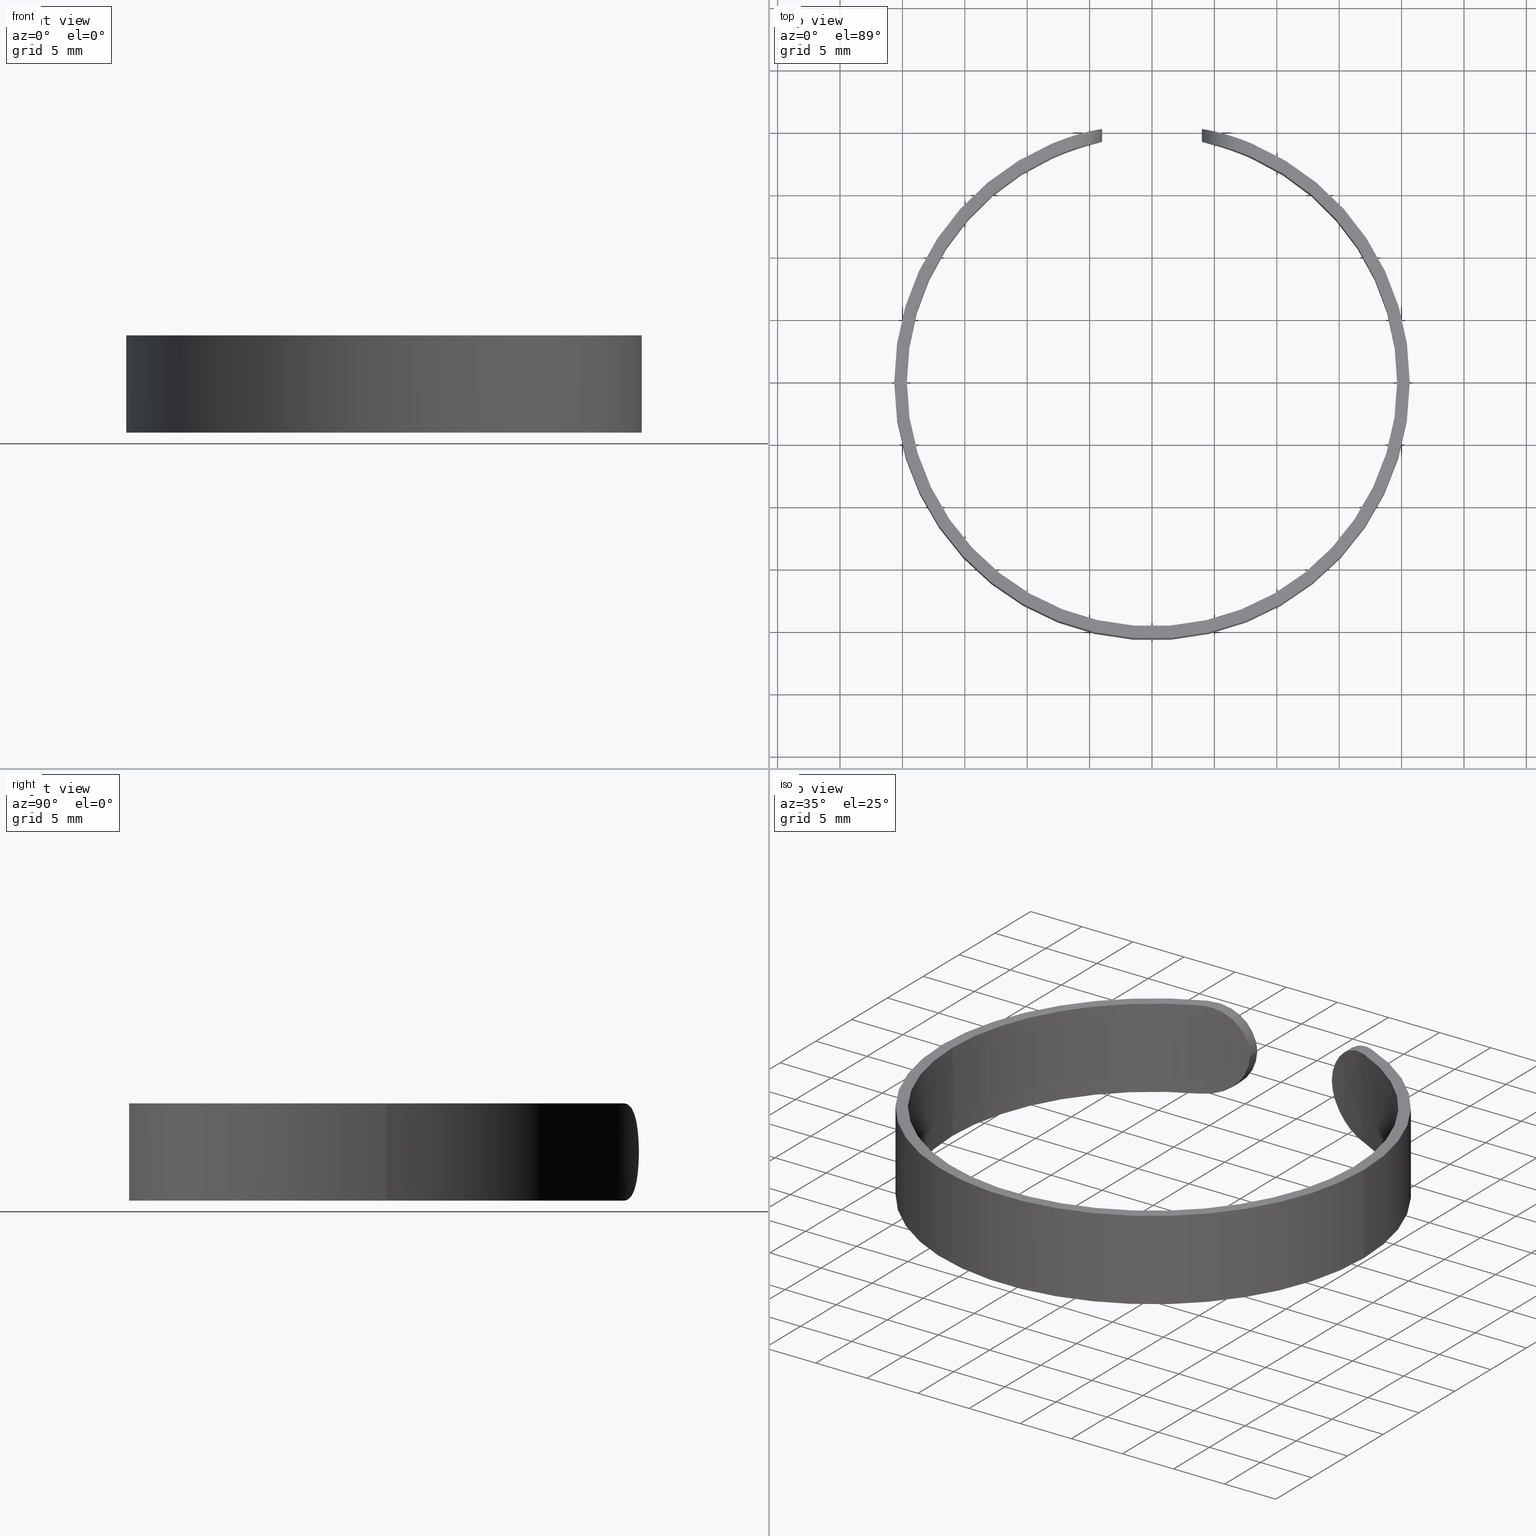
[diagram: canonical four-view strip — front | top / right | iso, engineering-drawing reading convention]
A machine part, canonical four-view strip (front | top / right | iso — engineering-drawing reading convention). The complete STEP part file that produces these views, byte-faithful:
ISO-10303-21;
HEADER;
FILE_DESCRIPTION (( 'STEP AP203' ),
    '1' );
FILE_NAME ('515001.STEP',
    '2019-09-26T07:24:07',
    ( '' ),
    ( '' ),
    'SwSTEP 2.0',
    'SolidWorks 2016',
    '' );
FILE_SCHEMA (( 'CONFIG_CONTROL_DESIGN' ));
ENDSEC;

DATA;
#1 = PERSON_AND_ORGANIZATION_ROLE ( 'creator' ) ;
#2 = CIRCLE ( 'NONE', #518, 19.65000000000000200 ) ;
#3 = CARTESIAN_POINT ( 'NONE',  ( 6.307868449288566400, 19.66454576154485100, 7.433185883465450100 ) ) ;
#4 = ORIENTED_EDGE ( 'NONE', *, *, #328, .F. ) ;
#5 = DESIGN_CONTEXT ( 'detailed design', #452, 'design' ) ;
#6 = ADVANCED_FACE ( 'NONE', ( #531 ), #271, .T. ) ;
#7 = AXIS2_PLACEMENT_3D ( 'NONE', #92, #247, #401 ) ;
#8 = CARTESIAN_POINT ( 'NONE',  ( 5.450281195804393500, 18.88003390752093200, 6.893003812361151000 ) ) ;
#9 = CARTESIAN_POINT ( 'NONE',  ( 5.445877405462773000, 18.88129034039584700, 0.9107619216082537500 ) ) ;
#10 = CARTESIAN_POINT ( 'NONE',  ( 7.755833108593554600, 18.05660586022417700, 1.304430738771622800E-016 ) ) ;
#11 = PERSON_AND_ORGANIZATION ( #171, #152 ) ;
#12 = ORIENTED_EDGE ( 'NONE', *, *, #263, .F. ) ;
#13 = CARTESIAN_POINT ( 'NONE',  ( 19.65000000000000200, 2.406430960324549000E-015, 0.0000000000000000000 ) ) ;
#14 = CC_DESIGN_PERSON_AND_ORGANIZATION_ASSIGNMENT ( #11, #359, ( #183 ) ) ;
#15 = CARTESIAN_POINT ( 'NONE',  ( -19.65000000000000200, 0.0000000000000000000, 0.0000000000000000000 ) ) ;
#16 = SECURITY_CLASSIFICATION ( '', '', #149 ) ;
#17 = PERSON_AND_ORGANIZATION ( #171, #152 ) ;
#18 = CIRCLE ( 'NONE', #266, 19.65000000000000200 ) ;
#19 = DIRECTION ( 'NONE',  ( -0.0000000000000000000, -0.0000000000000000000, -1.000000000000000000 ) ) ;
#20 = VECTOR ( 'NONE', #248, 1000.000000000000000 ) ;
#21 = CARTESIAN_POINT ( 'NONE',  ( 4.895375029125314200, 20.06195776127647100, 1.464316113444598800 ) ) ;
#22 = CARTESIAN_POINT ( 'NONE',  ( -8.000000000000000000, 20.25888693882269100, 4.000000000000000000 ) ) ;
#23 = B_SPLINE_CURVE_WITH_KNOTS ( 'NONE', 3,
 ( #594, #142, #251, #296, #550, #395, #588, #298, #43, #403, #597, #96, #639, #502, #204, #544, #633, #635 ),
 .UNSPECIFIED., .F., .F.,
 ( 4, 2, 2, 2, 2, 2, 2, 2, 4 ),
 ( 0.0000000000000000000, 0.0007915782711390858200, 0.001583156542278171600, 0.002374734813417257500, 0.003166313084556343300, 0.003957891355695429500, 0.004749469626834514900, 0.005541047897973600300, 0.006332626169112686600 ),
 .UNSPECIFIED. ) ;
#24 = LOCAL_TIME ( 15, 24, 7.000000000000000000, #293 ) ;
#25 = PLANE ( 'NONE',  #99 ) ;
#26 = CARTESIAN_POINT ( 'NONE',  ( 7.999999999999998200, 19.03739740615822700, 0.0000000000000000000 ) ) ;
#27 = AXIS2_PLACEMENT_3D ( 'NONE', #356, #584, #242 ) ;
#28 = CARTESIAN_POINT ( 'NONE',  ( 4.001250195373557100, 20.25864005490059900, 3.899999999999993200 ) ) ;
#29 = CALENDAR_DATE ( 2019, 26, 9 ) ;
#30 = CARTESIAN_POINT ( 'NONE',  ( -5.440013080308325800, 19.92150801506721800, 0.9156393886543285900 ) ) ;
#31 = ORIENTED_EDGE ( 'NONE', *, *, #433, .T. ) ;
#32 = EDGE_LOOP ( 'NONE', ( #212, #81, #79, #265, #593 ) ) ;
#33 = PRODUCT_DEFINITION_SHAPE ( 'NONE', 'NONE',  #526 ) ;
#34 = CARTESIAN_POINT ( 'NONE',  ( -4.591656496433357000, 20.13364190875028800, 5.909877613514676200 ) ) ;
#35 = AXIS2_PLACEMENT_3D ( 'NONE', #521, #573, #280 ) ;
#36 = DIRECTION ( 'NONE',  ( -0.0000000000000000000, 1.000000000000000000, 0.0000000000000000000 ) ) ;
#37 = PERSON_AND_ORGANIZATION ( #171, #152 ) ;
#38 = ORIENTED_EDGE ( 'NONE', *, *, #343, .T. ) ;
#39 = EDGE_CURVE ( 'NONE', #130, #272, #287, .T. ) ;
#40 = CARTESIAN_POINT ( 'NONE',  ( -4.589655885951295000, 19.10712834291797800, 5.906866773427263500 ) ) ;
#41 = CARTESIAN_POINT ( 'NONE',  ( 7.999999999999998200, 17.94777144940285000, 7.799999999999999800 ) ) ;
#42 = MANIFOLD_SOLID_BREP ( 'Բ��1', #73 ) ;
#43 = CARTESIAN_POINT ( 'NONE',  ( -5.450281195804408600, 18.88003390752092500, 0.9069961876388404900 ) ) ;
#44 = CALENDAR_DATE ( 2019, 26, 9 ) ;
#45 = CARTESIAN_POINT ( 'NONE',  ( -4.001250195373559700, 20.25864005490060300, 3.899999999999970200 ) ) ;
#46 = LINE ( 'NONE', #115, #200 ) ;
#47 = EDGE_LOOP ( 'NONE', ( #353, #181, #418, #330 ) ) ;
#48 = VERTEX_POINT ( 'NONE', #632 ) ;
#49 = DIRECTION ( 'NONE',  ( 1.000000000000000000, 0.0000000000000000000, 0.0000000000000000000 ) ) ;
#50 = PRODUCT_RELATED_PRODUCT_CATEGORY ( 'detail', '', ( #566 ) ) ;
#51 = CARTESIAN_POINT ( 'NONE',  ( -7.025993754578018400, 18.35282960933736300, 7.687470841140388700 ) ) ;
#52 = SECURITY_CLASSIFICATION_LEVEL ( 'unclassified' ) ;
#53 = ADVANCED_FACE ( 'NONE', ( #530 ), #389, .T. ) ;
#54 = CARTESIAN_POINT ( 'NONE',  ( 6.776633648679635700, 19.50796762282028100, 7.616637737483452000 ) ) ;
#55 = EDGE_CURVE ( 'NONE', #48, #611, #136, .T. ) ;
#56 = CARTESIAN_POINT ( 'NONE',  ( 5.645090313509517600, 19.86472171443856300, 7.043598642528150900 ) ) ;
#57 = FACE_OUTER_BOUND ( 'NONE', #89, .T. ) ;
#58 = CARTESIAN_POINT ( 'NONE',  ( 5.651630731262319100, 18.82109915163533400, 0.7516877539211309600 ) ) ;
#59 = ORIENTED_EDGE ( 'NONE', *, *, #87, .T. ) ;
#60 = EDGE_CURVE ( 'NONE', #189, #138, #383, .T. ) ;
#61 = DIRECTION ( 'NONE',  ( 0.0000000000000000000, -1.000000000000000000, 0.0000000000000000000 ) ) ;
#62 = DIRECTION ( 'NONE',  ( -0.0000000000000000000, -0.0000000000000000000, -1.000000000000000000 ) ) ;
#63 = DIRECTION ( 'NONE',  ( -4.250444316547424500E-015, -1.000000000000000000, 0.0000000000000000000 ) ) ;
#64 = COORDINATED_UNIVERSAL_TIME_OFFSET ( 8, 0, .AHEAD. ) ;
#65 = VECTOR ( 'NONE', #75, 1000.000000000000000 ) ;
#66 = ORIENTED_EDGE ( 'NONE', *, *, #333, .T. ) ;
#67 = DIRECTION ( 'NONE',  ( -0.0000000000000000000, -0.0000000000000000000, -1.000000000000000000 ) ) ;
#68 = DIRECTION ( 'NONE',  ( 0.0000000000000000000, 0.0000000000000000000, 1.000000000000000000 ) ) ;
#69 = DIRECTION ( 'NONE',  ( 0.0000000000000000000, 0.0000000000000000000, 1.000000000000000000 ) ) ;
#70 = AXIS2_PLACEMENT_3D ( 'NONE', #398, #93, #49 ) ;
#71 = LINE ( 'NONE', #423, #627 ) ;
#72 = CARTESIAN_POINT ( 'NONE',  ( 4.243328438209134700, 20.20962064675951500, 2.601297775789987100 ) ) ;
#73 = CLOSED_SHELL ( 'NONE', ( #53, #307, #587, #193, #420, #641, #394, #533, #196, #537, #6, #402 ) ) ;
#74 = CARTESIAN_POINT ( 'NONE',  ( -20.64999999999999900, 0.0000000000000000000, 7.799999999999999800 ) ) ;
#75 = DIRECTION ( 'NONE',  ( -0.0000000000000000000, -0.0000000000000000000, -1.000000000000000000 ) ) ;
#76 = CARTESIAN_POINT ( 'NONE',  ( 0.0000000000000000000, 0.0000000000000000000, 0.0000000000000000000 ) ) ;
#77 = CALENDAR_DATE ( 2019, 26, 9 ) ;
#78 = CIRCLE ( 'NONE', #575, 20.64999999999999900 ) ;
#79 = ORIENTED_EDGE ( 'NONE', *, *, #91, .T. ) ;
#80 = DIRECTION ( 'NONE',  ( 4.250444316547424500E-015, 1.000000000000000000, -0.0000000000000000000 ) ) ;
#81 = ORIENTED_EDGE ( 'NONE', *, *, #640, .F. ) ;
#82 = CARTESIAN_POINT ( 'NONE',  ( -4.895375029125304400, 20.06195776127647100, 6.335683886555385100 ) ) ;
#83 = AXIS2_PLACEMENT_3D ( 'NONE', #350, #249, #347 ) ;
#84 = CARTESIAN_POINT ( 'NONE',  ( -4.041219654612105700, 20.25079472239115200, 4.431405115075309100 ) ) ;
#85 = CALENDAR_DATE ( 2019, 26, 9 ) ;
#86 = CARTESIAN_POINT ( 'NONE',  ( -4.001250195373559700, 20.25864005490060300, 3.899999999999970200 ) ) ;
#87 = EDGE_CURVE ( 'NONE', #272, #558, #429, .T. ) ;
#88 = CYLINDRICAL_SURFACE ( 'NONE', #35, 19.65000000000000200 ) ;
#89 = EDGE_LOOP ( 'NONE', ( #410, #66, #471, #517, #425, #629, #123, #565 ) ) ;
#90 = CARTESIAN_POINT ( 'NONE',  ( -19.65000000000000200, 0.0000000000000000000, 7.799999999999999800 ) ) ;
#91 = EDGE_CURVE ( 'NONE', #571, #48, #164, .T. ) ;
#92 = CARTESIAN_POINT ( 'NONE',  ( 0.0000000000000000000, 0.0000000000000000000, 7.799999999999999800 ) ) ;
#93 = DIRECTION ( 'NONE',  ( 0.0000000000000000000, 0.0000000000000000000, 1.000000000000000000 ) ) ;
#94 = CARTESIAN_POINT ( 'NONE',  ( -4.459208789825901900, 19.13766480374611600, 5.679419032089859000 ) ) ;
#95 = CALENDAR_DATE ( 2019, 26, 9 ) ;
#96 = CARTESIAN_POINT ( 'NONE',  ( -4.594805017448511100, 19.10588762039216700, 1.884995766030679100 ) ) ;
#97 = FACE_OUTER_BOUND ( 'NONE', #47, .T. ) ;
#98 = EDGE_LOOP ( 'NONE', ( #432, #540, #548, #153 ) ) ;
#99 = AXIS2_PLACEMENT_3D ( 'NONE', #377, #69, #428 ) ;
#100 = CARTESIAN_POINT ( 'NONE',  ( 0.0000000000000000000, 0.0000000000000000000, 7.799999999999999800 ) ) ;
#101 =( NAMED_UNIT ( * ) PLANE_ANGLE_UNIT ( ) SI_UNIT ( $, .RADIAN. ) );
#102 = CARTESIAN_POINT ( 'NONE',  ( -7.755833108593570600, 18.05660586022418100, 7.800000000000002500 ) ) ;
#103 = APPROVAL_STATUS ( 'not_yet_approved' ) ;
#104 = CARTESIAN_POINT ( 'NONE',  ( -6.782413021497170300, 18.44405068199656100, 7.618452531997448300 ) ) ;
#105 = CIRCLE ( 'NONE', #7, 19.65000000000000200 ) ;
#106 = ORIENTED_EDGE ( 'NONE', *, *, #39, .T. ) ;
#107 = APPROVAL ( #357, 'δָ��' ) ;
#108 = CARTESIAN_POINT ( 'NONE',  ( 6.314278777546841000, 18.60951411170248100, 0.3638699487630493400 ) ) ;
#109 = PRODUCT_DEFINITION_SHAPE ( 'NONE', 'NONE',  #231 ) ;
#110 = EDGE_CURVE ( 'NONE', #611, #638, #262, .T. ) ;
#111 = DIRECTION ( 'NONE',  ( -0.0000000000000000000, -0.0000000000000000000, -1.000000000000000000 ) ) ;
#112 = APPROVAL_ROLE ( '' ) ;
#113 = APPROVAL_PERSON_ORGANIZATION ( #431, #289, #112 ) ;
#114 = CYLINDRICAL_SURFACE ( 'NONE', #325, 20.64999999999999900 ) ;
#115 = CARTESIAN_POINT ( 'NONE',  ( 20.64999999999999900, 2.528895640239284100E-015, 7.799999999999999800 ) ) ;
#116 = ORIENTED_EDGE ( 'NONE', *, *, #55, .T. ) ;
#117 = DIRECTION ( 'NONE',  ( -0.0000000000000000000, -0.0000000000000000000, -1.000000000000000000 ) ) ;
#118 = CARTESIAN_POINT ( 'NONE',  ( -8.000000000000005300, 19.03739740615822400, 7.799999999999999800 ) ) ;
#119 = CC_DESIGN_APPROVAL ( #381, ( #526 ) ) ;
#120 = CARTESIAN_POINT ( 'NONE',  ( 6.309502619680717600, 19.66404555716294300, 0.3659257480248781500 ) ) ;
#121 = DATE_AND_TIME ( #279, #546 ) ;
#122 = ORIENTED_EDGE ( 'NONE', *, *, #295, .T. ) ;
#123 = ORIENTED_EDGE ( 'NONE', *, *, #225, .T. ) ;
#124 = CARTESIAN_POINT ( 'NONE',  ( 4.007911188262439400, 20.25732445330909600, 3.633643559869719700 ) ) ;
#125 = DIRECTION ( 'NONE',  ( -0.0000000000000000000, -0.0000000000000000000, -1.000000000000000000 ) ) ;
#126 = PRODUCT ( '515001', '515001', '', ( #306 ) ) ;
#127 = EDGE_CURVE ( 'NONE', #48, #579, #274, .T. ) ;
#128 = DATE_AND_TIME ( #85, #198 ) ;
#129 = PERSON_AND_ORGANIZATION ( #171, #152 ) ;
#130 = VERTEX_POINT ( 'NONE', #45 ) ;
#131 = CARTESIAN_POINT ( 'NONE',  ( 0.0000000000000000000, 0.0000000000000000000, 7.799999999999999800 ) ) ;
#132 = AXIS2_PLACEMENT_3D ( 'NONE', #568, #275, #619 ) ;
#133 = CARTESIAN_POINT ( 'NONE',  ( 7.999999999999998200, 20.25888693882267300, 4.000000000000000000 ) ) ;
#134 = CARTESIAN_POINT ( 'NONE',  ( -4.007911188262438500, 20.25732445330909200, 4.166356440130245500 ) ) ;
#135 = DATE_AND_TIME ( #95, #527 ) ;
#136 = LINE ( 'NONE', #637, #516 ) ;
#137 = CARTESIAN_POINT ( 'NONE',  ( -7.020837237768803100, 19.42159598297301000, 0.1137489386312720100 ) ) ;
#138 = VERTEX_POINT ( 'NONE', #267 ) ;
#139 = CARTESIAN_POINT ( 'NONE',  ( -7.509196294477861000, 19.23804868109222000, 0.02246071677782991400 ) ) ;
#140 = CC_DESIGN_SECURITY_CLASSIFICATION ( #16, ( #338 ) ) ;
#141 = DIRECTION ( 'NONE',  ( -1.000000000000000000, 0.0000000000000000000, 0.0000000000000000000 ) ) ;
#142 = CARTESIAN_POINT ( 'NONE',  ( -7.755753132138689700, 18.05664150875250200, -3.239901023247697600E-017 ) ) ;
#143 = APPROVAL_DATE_TIME ( #417, #289 ) ;
#144 = DIRECTION ( 'NONE',  ( -0.0000000000000000000, -0.0000000000000000000, -1.000000000000000000 ) ) ;
#145 = ORIENTED_EDGE ( 'NONE', *, *, #433, .F. ) ;
#146 = CARTESIAN_POINT ( 'NONE',  ( -5.069204769459568100, 18.98588603776352100, 6.534478643096800700 ) ) ;
#147 = APPROVAL_ROLE ( '' ) ;
#148 = DIRECTION ( 'NONE',  ( 1.000000000000000000, 0.0000000000000000000, 0.0000000000000000000 ) ) ;
#149 = SECURITY_CLASSIFICATION_LEVEL ( 'unclassified' ) ;
#150 = CARTESIAN_POINT ( 'NONE',  ( 4.244621703907975000, 19.18640092399108700, 5.202310547632307300 ) ) ;
#151 = COORDINATED_UNIVERSAL_TIME_OFFSET ( 8, 0, .AHEAD. ) ;
#152 = ORGANIZATION ( 'δָ��', 'δָ��', '' ) ;
#153 = ORIENTED_EDGE ( 'NONE', *, *, #567, .F. ) ;
#154 = CC_DESIGN_DATE_AND_TIME_ASSIGNMENT ( #538, #606, ( #526 ) ) ;
#155 = CARTESIAN_POINT ( 'NONE',  ( 4.899663986239899800, 19.02998864249183700, 6.340966820067541800 ) ) ;
#156 = EDGE_LOOP ( 'NONE', ( #585, #441, #447, #106 ) ) ;
#157 = APPLICATION_CONTEXT ( 'configuration controlled 3d designs of mechanical parts and assemblies' ) ;
#158 = CARTESIAN_POINT ( 'NONE',  ( 4.460867748196959000, 19.13727913676626000, 5.682520630167808800 ) ) ;
#159 = B_SPLINE_CURVE_WITH_KNOTS ( 'NONE', 3,
 ( #290, #235, #586, #444, #185, #291, #340, #442, #532, #30, #631, #485, #182, #233, #137, #139, #486, #628 ),
 .UNSPECIFIED., .F., .F.,
 ( 4, 2, 2, 2, 2, 2, 2, 2, 4 ),
 ( 9.879302435176142600E-005, 0.0008880267322614252000, 0.001677260440171089100, 0.002466494148080752600, 0.003255727855990416500, 0.004044961563900080800, 0.004834195271809744300, 0.005623428979719408700, 0.006412662687629072100 ),
 .UNSPECIFIED. ) ;
#160 = CARTESIAN_POINT ( 'NONE',  ( 6.782413021497163200, 18.44405068199656500, 0.1815474680025497000 ) ) ;
#161 = LOCAL_TIME ( 15, 24, 7.000000000000000000, #64 ) ;
#162 = ORIENTED_EDGE ( 'NONE', *, *, #277, .T. ) ;
#163 = AXIS2_PLACEMENT_3D ( 'NONE', #392, #445, #141 ) ;
#164 = B_SPLINE_CURVE_WITH_KNOTS ( 'NONE', 3,
 ( #41, #498, #508, #454, #315, #547, #259, #598, #8, #308, #155, #364, #158, #150, #304, #551, #207, #412 ),
 .UNSPECIFIED., .F., .F.,
 ( 4, 2, 2, 2, 2, 2, 2, 2, 4 ),
 ( 0.0000000000000000000, 0.0007915782711390879900, 0.001583156542278176000, 0.002374734813417264000, 0.003166313084556352000, 0.003957891355695440000, 0.004749469626834527900, 0.005541047897973615900, 0.006332626169112703900 ),
 .UNSPECIFIED. ) ;
#165 = PERSON_AND_ORGANIZATION ( #171, #152 ) ;
#166 = FACE_OUTER_BOUND ( 'NONE', #218, .T. ) ;
#167 = CARTESIAN_POINT ( 'NONE',  ( 20.64999999999999900, 2.528895640239284100E-015, 0.0000000000000000000 ) ) ;
#168 = ORIENTED_EDGE ( 'NONE', *, *, #570, .F. ) ;
#169 = VERTEX_POINT ( 'NONE', #13 ) ;
#170 = CARTESIAN_POINT ( 'NONE',  ( 6.083280943453407200, 19.73491429910908900, 0.4798811949262119500 ) ) ;
#171 = PERSON ( 'δָ��', 'δָ��', 'δָ��', ('δָ��'), ('δָ��'), ('δָ��') ) ;
#172 = CARTESIAN_POINT ( 'NONE',  ( 4.041219654612108400, 20.25079472239115900, 3.368594884924657900 ) ) ;
#173 = AXIS2_PLACEMENT_3D ( 'NONE', #349, #144, #148 ) ;
#174 = CARTESIAN_POINT ( 'NONE',  ( 0.0000000000000000000, 0.0000000000000000000, 0.0000000000000000000 ) ) ;
#175 = DATE_AND_TIME ( #44, #227 ) ;
#176 = DIRECTION ( 'NONE',  ( 1.000000000000000000, 0.0000000000000000000, 0.0000000000000000000 ) ) ;
#177 = DIRECTION ( 'NONE',  ( 4.250444316547424500E-015, 1.000000000000000000, -0.0000000000000000000 ) ) ;
#178 = APPROVAL_PERSON_ORGANIZATION ( #286, #107, #545 ) ;
#179 = CARTESIAN_POINT ( 'NONE',  ( -6.781859530246282300, 19.50617574754069500, 7.618430418075348600 ) ) ;
#180 = EDGE_LOOP ( 'NONE', ( #246, #345, #510, #116 ) ) ;
#181 = ORIENTED_EDGE ( 'NONE', *, *, #333, .F. ) ;
#182 = CARTESIAN_POINT ( 'NONE',  ( -6.307868449288581500, 19.66454576154484400, 0.3668141165345441000 ) ) ;
#183 = PRODUCT_DEFINITION_FORMATION_WITH_SPECIFIED_SOURCE ( '�κ�', '', #126, .NOT_KNOWN. ) ;
#184 = CARTESIAN_POINT ( 'NONE',  ( -4.159533489337325000, 20.22682437596989800, 4.949535220361351400 ) ) ;
#185 = CARTESIAN_POINT ( 'NONE',  ( -4.241968840561318300, 20.20990545619525100, 2.604905724731457500 ) ) ;
#186 = CARTESIAN_POINT ( 'NONE',  ( -5.445877405462776500, 18.88129034039584700, 6.889238078391740000 ) ) ;
#187 = FACE_OUTER_BOUND ( 'NONE', #32, .T. ) ;
#188 = CARTESIAN_POINT ( 'NONE',  ( 19.65000000000000200, 2.406430960324549000E-015, 7.799999999999999800 ) ) ;
#189 = VERTEX_POINT ( 'NONE', #15 ) ;
#190 = DIRECTION ( 'NONE',  ( -0.0000000000000000000, -0.0000000000000000000, -1.000000000000000000 ) ) ;
#191 = CARTESIAN_POINT ( 'NONE',  ( -4.157823145740763900, 19.20517071595705600, 4.943413160790116800 ) ) ;
#192 = SECURITY_CLASSIFICATION ( '', '', #52 ) ;
#193 = ADVANCED_FACE ( 'NONE', ( #209 ), #302, .F. ) ;
#194 = PERSON_AND_ORGANIZATION_ROLE ( 'creator' ) ;
#195 = PERSON_AND_ORGANIZATION_ROLE ( 'design_supplier' ) ;
#196 = ADVANCED_FACE ( 'NONE', ( #388 ), #609, .T. ) ;
#197 = APPROVAL ( #492, 'δָ��' ) ;
#198 = LOCAL_TIME ( 15, 24, 7.000000000000000000, #335 ) ;
#199 = CARTESIAN_POINT ( 'NONE',  ( -4.007915069416400300, 19.23692187275283100, 4.166511637766622500 ) ) ;
#200 = VECTOR ( 'NONE', #117, 1000.000000000000000 ) ;
#201 = EDGE_LOOP ( 'NONE', ( #217, #409, #294, #453, #59 ) ) ;
#202 = DATE_TIME_ROLE ( 'classification_date' ) ;
#203 = CARTESIAN_POINT ( 'NONE',  ( 4.895272756425587300, 19.03112186142437100, 1.464254878698307400 ) ) ;
#204 = CARTESIAN_POINT ( 'NONE',  ( -4.160391861737963400, 19.20461758641536300, 2.847447983199423000 ) ) ;
#205 = CARTESIAN_POINT ( 'NONE',  ( 4.241968840561307600, 20.20990545619525500, 5.195094275268513000 ) ) ;
#206 = APPLICATION_PROTOCOL_DEFINITION ( 'international standard', 'config_control_design', 1994, #157 ) ;
#207 = CARTESIAN_POINT ( 'NONE',  ( 4.007931848873316700, 19.23691838290304500, 4.167182606267396700 ) ) ;
#208 = DATE_TIME_ROLE ( 'classification_date' ) ;
#209 = FACE_OUTER_BOUND ( 'NONE', #201, .T. ) ;
#210 =( GEOMETRIC_REPRESENTATION_CONTEXT ( 3 ) GLOBAL_UNCERTAINTY_ASSIGNED_CONTEXT ( ( #576 ) ) GLOBAL_UNIT_ASSIGNED_CONTEXT ( ( #590, #101, #301 ) ) REPRESENTATION_CONTEXT ( 'NONE', 'WORKASPACE' ) );
#211 = CARTESIAN_POINT ( 'NONE',  ( 0.0000000000000000000, 0.0000000000000000000, 7.799999999999999800 ) ) ;
#212 = ORIENTED_EDGE ( 'NONE', *, *, #543, .F. ) ;
#213 = CARTESIAN_POINT ( 'NONE',  ( 4.157823145740763900, 19.20517071595705600, 2.856586839209863000 ) ) ;
#214 = CARTESIAN_POINT ( 'NONE',  ( -4.001250195373563300, 19.23830805642801800, 3.899999999999967000 ) ) ;
#215 = LOCAL_TIME ( 15, 24, 7.000000000000000000, #636 ) ;
#216 = LINE ( 'NONE', #561, #583 ) ;
#217 = ORIENTED_EDGE ( 'NONE', *, *, #225, .F. ) ;
#218 = EDGE_LOOP ( 'NONE', ( #399, #162, #322, #496, #305, #122, #602, #145 ) ) ;
#219 = B_SPLINE_CURVE_WITH_KNOTS ( 'NONE', 3,
 ( #473, #465, #613, #374, #426, #120, #170, #610, #515, #273, #21, #380, #223, #72, #221, #172, #124, #616 ),
 .UNSPECIFIED., .F., .F.,
 ( 4, 2, 2, 2, 2, 2, 2, 2, 4 ),
 ( 0.0000000000000000000, 0.0007892263829322243100, 0.001578452765864448600, 0.002367679148796673000, 0.003156905531728897200, 0.003946131914661121400, 0.004735358297593346100, 0.005524584680525569000, 0.006313811063457791900 ),
 .UNSPECIFIED. ) ;
#220 = AXIS2_PLACEMENT_3D ( 'NONE', #475, #125, #524 ) ;
#221 = CARTESIAN_POINT ( 'NONE',  ( 4.159533489337329500, 20.22682437596988700, 2.850464779638620000 ) ) ;
#222 = VERTEX_POINT ( 'NONE', #118 ) ;
#223 = CARTESIAN_POINT ( 'NONE',  ( 4.458415750141125700, 20.16326193648578500, 2.122200719903800900 ) ) ;
#224 = CARTESIAN_POINT ( 'NONE',  ( -20.64999999999999900, 0.0000000000000000000, 0.0000000000000000000 ) ) ;
#225 = EDGE_CURVE ( 'NONE', #563, #558, #18, .T. ) ;
#226 = PRODUCT_RELATED_PRODUCT_CATEGORY ( 'detail', '', ( #126 ) ) ;
#227 = LOCAL_TIME ( 15, 24, 7.000000000000000000, #151 ) ;
#228 = FACE_OUTER_BOUND ( 'NONE', #257, .T. ) ;
#229 = ORIENTED_EDGE ( 'NONE', *, *, #360, .F. ) ;
#230 = DIRECTION ( 'NONE',  ( 1.000000000000000000, 0.0000000000000000000, 0.0000000000000000000 ) ) ;
#231 = PRODUCT_DEFINITION ( 'δ֪', '', #338, #5 ) ;
#232 = CARTESIAN_POINT ( 'NONE',  ( -6.309502619680715800, 19.66404555716294300, 7.434074251975118000 ) ) ;
#233 = CARTESIAN_POINT ( 'NONE',  ( -6.776633648679651700, 19.50796762282027400, 0.1833622625165446900 ) ) ;
#234 = CC_DESIGN_APPROVAL ( #289, ( #183 ) ) ;
#235 = CARTESIAN_POINT ( 'NONE',  ( -4.007895173158696700, 20.25732761642551300, 3.634283963799454800 ) ) ;
#236 = CYLINDRICAL_SURFACE ( 'NONE', #511, 4.000000000000000000 ) ;
#237 = DIRECTION ( 'NONE',  ( 0.0000000000000000000, 0.0000000000000000000, -1.000000000000000000 ) ) ;
#238 = AXIS2_PLACEMENT_3D ( 'NONE', #211, #67, #326 ) ;
#239 = CARTESIAN_POINT ( 'NONE',  ( -5.651724668404256100, 19.86280840421904200, 7.048176613206530700 ) ) ;
#240 = CARTESIAN_POINT ( 'NONE',  ( -4.001250195373563300, 19.23830805642801800, 3.899999999999967000 ) ) ;
#241 = CARTESIAN_POINT ( 'NONE',  ( 0.0000000000000000000, 0.0000000000000000000, 0.0000000000000000000 ) ) ;
#242 = DIRECTION ( 'NONE',  ( 1.000000000000000000, -4.250444316547424500E-015, 0.0000000000000000000 ) ) ;
#243 = PERSON_AND_ORGANIZATION ( #171, #152 ) ;
#244 = APPROVAL_ROLE ( '' ) ;
#245 = FACE_OUTER_BOUND ( 'NONE', #592, .T. ) ;
#246 = ORIENTED_EDGE ( 'NONE', *, *, #343, .F. ) ;
#247 = DIRECTION ( 'NONE',  ( -0.0000000000000000000, -0.0000000000000000000, -1.000000000000000000 ) ) ;
#248 = DIRECTION ( 'NONE',  ( -4.250444316547424500E-015, -1.000000000000000000, 0.0000000000000000000 ) ) ;
#249 = DIRECTION ( 'NONE',  ( -0.0000000000000000000, -0.0000000000000000000, -1.000000000000000000 ) ) ;
#250 = CARTESIAN_POINT ( 'NONE',  ( 7.020837237768791500, 19.42159598297301000, 7.686251061368726500 ) ) ;
#251 = CARTESIAN_POINT ( 'NONE',  ( -7.512721737642397800, 18.15899609867131300, 0.02219508991781848200 ) ) ;
#252 = APPROVAL ( #103, 'δָ��' ) ;
#253 = LOCAL_TIME ( 15, 24, 7.000000000000000000, #556 ) ;
#254 = CARTESIAN_POINT ( 'NONE',  ( 5.440013080308304400, 19.92150801506722100, 6.884360611345659500 ) ) ;
#255 = LINE ( 'NONE', #344, #468 ) ;
#256 = ORIENTED_EDGE ( 'NONE', *, *, #567, .T. ) ;
#257 = EDGE_LOOP ( 'NONE', ( #370, #4, #256, #281, #477 ) ) ;
#258 = APPROVAL_STATUS ( 'not_yet_approved' ) ;
#259 = CARTESIAN_POINT ( 'NONE',  ( 6.089757919290139700, 18.68391043943560000, 7.323621620567342600 ) ) ;
#260 = EDGE_CURVE ( 'NONE', #638, #571, #591, .T. ) ;
#261 = CARTESIAN_POINT ( 'NONE',  ( 4.456839681716575200, 20.16360975232659300, 5.674860312434185900 ) ) ;
#262 = B_SPLINE_CURVE_WITH_KNOTS ( 'NONE', 3,
 ( #501, #310, #603, #503, #205, #261, #365, #361, #462, #254, #56, #458, #3, #54, #250, #596, #644, #358 ),
 .UNSPECIFIED., .F., .F.,
 ( 4, 2, 2, 2, 2, 2, 2, 2, 4 ),
 ( 9.879302435172578300E-005, 0.0008880267322613933200, 0.001677260440171060700, 0.002466494148080728300, 0.003255727855990395700, 0.004044961563900063500, 0.004834195271809731300, 0.005623428979719398300, 0.006412662687629066100 ),
 .UNSPECIFIED. ) ;
#263 = EDGE_CURVE ( 'NONE', #621, #563, #505, .T. ) ;
#264 = DATE_AND_TIME ( #396, #467 ) ;
#265 = ORIENTED_EDGE ( 'NONE', *, *, #127, .T. ) ;
#266 = AXIS2_PLACEMENT_3D ( 'NONE', #321, #111, #317 ) ;
#267 = CARTESIAN_POINT ( 'NONE',  ( -8.000000000000010700, 17.94777144940284700, 0.0000000000000000000 ) ) ;
#268 = CARTESIAN_POINT ( 'NONE',  ( 0.0000000000000000000, 0.0000000000000000000, 7.799999999999999800 ) ) ;
#269 = DATE_AND_TIME ( #29, #626 ) ;
#270 = VECTOR ( 'NONE', #435, 1000.000000000000000 ) ;
#271 = CYLINDRICAL_SURFACE ( 'NONE', #27, 4.000000000000000000 ) ;
#272 = VERTEX_POINT ( 'NONE', #214 ) ;
#273 = CARTESIAN_POINT ( 'NONE',  ( 5.066084536706275000, 20.01987766382198700, 1.268757310143036500 ) ) ;
#274 = B_SPLINE_CURVE_WITH_KNOTS ( 'NONE', 3,
 ( #506, #600, #413, #213, #459, #507, #555, #203, #312, #9, #58, #415, #108, #160, #557, #605, #10, #319 ),
 .UNSPECIFIED., .F., .F.,
 ( 4, 2, 2, 2, 2, 2, 2, 2, 4 ),
 ( 9.879328984881274500E-005, 0.0008903958337536197400, 0.001681998377658426800, 0.002473600921563233600, 0.003265203465468040800, 0.004056806009372848500, 0.004848408553277654800, 0.005640011097182462100, 0.006431613641087269300 ),
 .UNSPECIFIED. ) ;
#275 = DIRECTION ( 'NONE',  ( 0.0000000000000000000, 0.0000000000000000000, 1.000000000000000000 ) ) ;
#276 = EDGE_CURVE ( 'NONE', #482, #323, #46, .T. ) ;
#277 = EDGE_CURVE ( 'NONE', #579, #470, #71, .T. ) ;
#278 = DIRECTION ( 'NONE',  ( 0.0000000000000000000, 0.0000000000000000000, 1.000000000000000000 ) ) ;
#279 = CALENDAR_DATE ( 2019, 26, 9 ) ;
#280 = DIRECTION ( 'NONE',  ( -1.000000000000000000, 0.0000000000000000000, 0.0000000000000000000 ) ) ;
#281 = ORIENTED_EDGE ( 'NONE', *, *, #582, .T. ) ;
#282 = CC_DESIGN_PERSON_AND_ORGANIZATION_ASSIGNMENT ( #342, #461, ( #126 ) ) ;
#283 = CARTESIAN_POINT ( 'NONE',  ( 20.64999999999999900, 2.528895640239284100E-015, 7.799999999999999800 ) ) ;
#284 = CC_DESIGN_SECURITY_CLASSIFICATION ( #192, ( #183 ) ) ;
#285 = CARTESIAN_POINT ( 'NONE',  ( -6.083280943453402800, 19.73491429910908900, 7.320118805073783500 ) ) ;
#286 = PERSON_AND_ORGANIZATION ( #171, #152 ) ;
#287 = LINE ( 'NONE', #346, #20 ) ;
#288 = CARTESIAN_POINT ( 'NONE',  ( 19.65000000000000200, 2.406430960324549000E-015, 7.799999999999999800 ) ) ;
#289 = APPROVAL ( #258, 'δָ��' ) ;
#290 = CARTESIAN_POINT ( 'NONE',  ( -4.001250195373559700, 20.25864005490060300, 3.899999999999970200 ) ) ;
#291 = CARTESIAN_POINT ( 'NONE',  ( -4.456839681716589400, 20.16360975232659000, 2.125139687565790900 ) ) ;
#292 = CARTESIAN_POINT ( 'NONE',  ( -4.458415750141116800, 20.16326193648578500, 5.677799280096178500 ) ) ;
#293 = COORDINATED_UNIVERSAL_TIME_OFFSET ( 8, 0, .AHEAD. ) ;
#294 = ORIENTED_EDGE ( 'NONE', *, *, #60, .T. ) ;
#295 = EDGE_CURVE ( 'NONE', #523, #138, #216, .T. ) ;
#296 = CARTESIAN_POINT ( 'NONE',  ( -7.029534599250021100, 18.35145145585903800, 0.1117396031660463200 ) ) ;
#297 = PERSON_AND_ORGANIZATION_ROLE ( 'creator' ) ;
#298 = CARTESIAN_POINT ( 'NONE',  ( -5.658067134806328700, 18.81913752334129000, 0.7472650604806282400 ) ) ;
#299 = CC_DESIGN_DATE_AND_TIME_ASSIGNMENT ( #504, #542, ( #231 ) ) ;
#300 = APPROVAL_DATE_TIME ( #175, #197 ) ;
#301 =( NAMED_UNIT ( * ) SI_UNIT ( $, .STERADIAN. ) SOLID_ANGLE_UNIT ( ) );
#302 = CYLINDRICAL_SURFACE ( 'NONE', #238, 19.65000000000000200 ) ;
#303 = ORIENTED_EDGE ( 'NONE', *, *, #91, .F. ) ;
#304 = CARTESIAN_POINT ( 'NONE',  ( 4.160391861737951800, 19.20461758641537000, 4.952552016800557200 ) ) ;
#305 = ORIENTED_EDGE ( 'NONE', *, *, #464, .F. ) ;
#306 = MECHANICAL_CONTEXT ( 'NONE', #642, 'mechanical' ) ;
#307 = ADVANCED_FACE ( 'NONE', ( #97 ), #114, .T. ) ;
#308 = CARTESIAN_POINT ( 'NONE',  ( 5.070973960904297900, 18.98542779476696300, 6.536520605814734700 ) ) ;
#309 = PERSON_AND_ORGANIZATION_ROLE ( 'classification_officer' ) ;
#310 = CARTESIAN_POINT ( 'NONE',  ( 4.007895173158690500, 20.25732761642551000, 4.165716036200509900 ) ) ;
#311 = AXIS2_PLACEMENT_3D ( 'NONE', #22, #177, #480 ) ;
#312 = CARTESIAN_POINT ( 'NONE',  ( 5.069204769459568100, 18.98588603776352100, 1.265521356903191600 ) ) ;
#313 = COORDINATED_UNIVERSAL_TIME_OFFSET ( 8, 0, .AHEAD. ) ;
#314 = ORIENTED_EDGE ( 'NONE', *, *, #543, .T. ) ;
#315 = CARTESIAN_POINT ( 'NONE',  ( 6.787566680149544700, 18.44218038758831600, 7.620211943998249600 ) ) ;
#316 = APPROVAL_STATUS ( 'not_yet_approved' ) ;
#317 = DIRECTION ( 'NONE',  ( 1.000000000000000000, 0.0000000000000000000, 0.0000000000000000000 ) ) ;
#318 = B_SPLINE_CURVE_WITH_KNOTS ( 'NONE', 3,
 ( #387, #528, #385, #525, #179, #232, #285, #239, #580, #625, #82, #34, #292, #623, #184, #84, #134, #86 ),
 .UNSPECIFIED., .F., .F.,
 ( 4, 2, 2, 2, 2, 2, 2, 2, 4 ),
 ( 0.0000000000000000000, 0.0007892263829322288600, 0.001578452765864457700, 0.002367679148796686500, 0.003156905531728915500, 0.003946131914661144000, 0.004735358297593373000, 0.005524584680525601900, 0.006313811063457830900 ),
 .UNSPECIFIED. ) ;
#319 = CARTESIAN_POINT ( 'NONE',  ( 7.999999999999998200, 17.94777144940285000, 0.0000000000000000000 ) ) ;
#320 = COORDINATED_UNIVERSAL_TIME_OFFSET ( 8, 0, .AHEAD. ) ;
#321 = CARTESIAN_POINT ( 'NONE',  ( 0.0000000000000000000, 0.0000000000000000000, 7.799999999999999800 ) ) ;
#322 = ORIENTED_EDGE ( 'NONE', *, *, #393, .F. ) ;
#323 = VERTEX_POINT ( 'NONE', #167 ) ;
#324 = DIRECTION ( 'NONE',  ( 1.000000000000000000, 0.0000000000000000000, 0.0000000000000000000 ) ) ;
#325 = AXIS2_PLACEMENT_3D ( 'NONE', #469, #19, #612 ) ;
#326 = DIRECTION ( 'NONE',  ( -1.000000000000000000, 0.0000000000000000000, 0.0000000000000000000 ) ) ;
#327 = CARTESIAN_POINT ( 'NONE',  ( 0.0000000000000000000, 0.0000000000000000000, 7.799999999999999800 ) ) ;
#328 = EDGE_CURVE ( 'NONE', #222, #549, #460, .T. ) ;
#329 = CIRCLE ( 'NONE', #472, 20.64999999999999900 ) ;
#330 = ORIENTED_EDGE ( 'NONE', *, *, #368, .T. ) ;
#331 = CARTESIAN_POINT ( 'NONE',  ( 0.0000000000000000000, 0.0000000000000000000, 0.0000000000000000000 ) ) ;
#332 = DIRECTION ( 'NONE',  ( 1.000000000000000000, 0.0000000000000000000, 0.0000000000000000000 ) ) ;
#333 = EDGE_CURVE ( 'NONE', #549, #482, #78, .T. ) ;
#334 = DIRECTION ( 'NONE',  ( 0.0000000000000000000, 0.0000000000000000000, 1.000000000000000000 ) ) ;
#335 = COORDINATED_UNIVERSAL_TIME_OFFSET ( 8, 0, .AHEAD. ) ;
#336 = CARTESIAN_POINT ( 'NONE',  ( 7.999999999999998200, 17.94777144940285000, 0.0000000000000000000 ) ) ;
#337 = ORIENTED_EDGE ( 'NONE', *, *, #393, .T. ) ;
#338 = PRODUCT_DEFINITION_FORMATION_WITH_SPECIFIED_SOURCE ( '�κ�', '', #566, .NOT_KNOWN. ) ;
#339 = ORIENTED_EDGE ( 'NONE', *, *, #55, .F. ) ;
#340 = CARTESIAN_POINT ( 'NONE',  ( -4.586668906140812600, 20.13478070144105200, 1.898051942353316400 ) ) ;
#341 = CARTESIAN_POINT ( 'NONE',  ( -8.000000000000000000, 20.25888693882269100, 7.799999999999999800 ) ) ;
#342 = PERSON_AND_ORGANIZATION ( #171, #152 ) ;
#343 = EDGE_CURVE ( 'NONE', #470, #611, #219, .T. ) ;
#344 = CARTESIAN_POINT ( 'NONE',  ( -19.65000000000000200, 0.0000000000000000000, 7.799999999999999800 ) ) ;
#345 = ORIENTED_EDGE ( 'NONE', *, *, #277, .F. ) ;
#346 = CARTESIAN_POINT ( 'NONE',  ( -4.001250195373564200, 19.10332919411275300, 3.899999999999999900 ) ) ;
#347 = DIRECTION ( 'NONE',  ( -1.000000000000000000, 0.0000000000000000000, 0.0000000000000000000 ) ) ;
#348 = AXIS2_PLACEMENT_3D ( 'NONE', #100, #190, #536 ) ;
#349 = CARTESIAN_POINT ( 'NONE',  ( 0.0000000000000000000, 0.0000000000000000000, 0.0000000000000000000 ) ) ;
#350 = CARTESIAN_POINT ( 'NONE',  ( 0.0000000000000000000, 0.0000000000000000000, 7.799999999999999800 ) ) ;
#351 = PERSON_AND_ORGANIZATION ( #171, #152 ) ;
#352 = LINE ( 'NONE', #188, #270 ) ;
#353 = ORIENTED_EDGE ( 'NONE', *, *, #276, .F. ) ;
#354 = VERTEX_POINT ( 'NONE', #224 ) ;
#355 = APPLICATION_PROTOCOL_DEFINITION ( 'international standard', 'config_control_design', 1994, #642 ) ;
#356 = CARTESIAN_POINT ( 'NONE',  ( -8.000000000000087000, 3.400355453237976200E-014, 3.799999999999999400 ) ) ;
#357 = APPROVAL_STATUS ( 'not_yet_approved' ) ;
#358 = CARTESIAN_POINT ( 'NONE',  ( 7.999999999999998200, 19.03739740615822700, 7.799999999999999800 ) ) ;
#359 = PERSON_AND_ORGANIZATION_ROLE ( 'design_supplier' ) ;
#360 = EDGE_CURVE ( 'NONE', #482, #638, #329, .T. ) ;
#361 = CARTESIAN_POINT ( 'NONE',  ( 4.890900802454496000, 20.06305098658307500, 6.330319539736538400 ) ) ;
#362 = APPROVAL_DATE_TIME ( #128, #422 ) ;
#363 = SHAPE_DEFINITION_REPRESENTATION ( #33, #466 ) ;
#364 = CARTESIAN_POINT ( 'NONE',  ( 4.594805017448497800, 19.10588762039217400, 5.915004233969306700 ) ) ;
#365 = CARTESIAN_POINT ( 'NONE',  ( 4.586668906140798400, 20.13478070144105600, 5.901948057646662500 ) ) ;
#366 = CARTESIAN_POINT ( 'NONE',  ( 7.999999999999998200, 0.0000000000000000000, 3.799999999999999400 ) ) ;
#367 = DESIGN_CONTEXT ( 'detailed design', #157, 'design' ) ;
#368 = EDGE_CURVE ( 'NONE', #354, #323, #481, .T. ) ;
#369 = PERSON_AND_ORGANIZATION ( #171, #152 ) ;
#370 = ORIENTED_EDGE ( 'NONE', *, *, #397, .F. ) ;
#371 = DIRECTION ( 'NONE',  ( -0.0000000000000000000, 1.000000000000000000, 0.0000000000000000000 ) ) ;
#372 = CC_DESIGN_PERSON_AND_ORGANIZATION_ASSIGNMENT ( #243, #195, ( #338 ) ) ;
#373 = DIRECTION ( 'NONE',  ( -0.0000000000000000000, 1.000000000000000000, -0.0000000000000000000 ) ) ;
#374 = CARTESIAN_POINT ( 'NONE',  ( 7.024669621259690200, 19.42018779177521300, 0.1128890766328167800 ) ) ;
#375 = APPROVAL_PERSON_ORGANIZATION ( #386, #381, #554 ) ;
#376 = CIRCLE ( 'NONE', #220, 19.65000000000000200 ) ;
#377 = CARTESIAN_POINT ( 'NONE',  ( 0.0000000000000000000, 0.0000000000000000000, 0.0000000000000000000 ) ) ;
#378 = EDGE_LOOP ( 'NONE', ( #229, #455, #337, #38, #488 ) ) ;
#379 = EDGE_CURVE ( 'NONE', #579, #169, #2, .T. ) ;
#380 = CARTESIAN_POINT ( 'NONE',  ( 4.591656496433365000, 20.13364190875028800, 1.890122386485302300 ) ) ;
#381 = APPROVAL ( #316, 'δָ��' ) ;
#382 = APPROVAL_DATE_TIME ( #121, #252 ) ;
#383 = CIRCLE ( 'NONE', #173, 19.65000000000000200 ) ;
#384 = ORIENTED_EDGE ( 'NONE', *, *, #110, .F. ) ;
#385 = CARTESIAN_POINT ( 'NONE',  ( -7.509879393181149600, 19.23775944998629200, 7.777522151921434800 ) ) ;
#386 = PERSON_AND_ORGANIZATION ( #171, #152 ) ;
#387 = CARTESIAN_POINT ( 'NONE',  ( -8.000000000000005300, 19.03739740615822400, 7.799999999999999800 ) ) ;
#388 = FACE_OUTER_BOUND ( 'NONE', #483, .T. ) ;
#389 = CYLINDRICAL_SURFACE ( 'NONE', #348, 20.64999999999999900 ) ;
#390 = AXIS2_PLACEMENT_3D ( 'NONE', #327, #334, #519 ) ;
#391 = CARTESIAN_POINT ( 'NONE',  ( -20.64999999999999900, 0.0000000000000000000, 7.799999999999999800 ) ) ;
#392 = CARTESIAN_POINT ( 'NONE',  ( 0.0000000000000000000, 0.0000000000000000000, 7.799999999999999800 ) ) ;
#393 = EDGE_CURVE ( 'NONE', #323, #470, #514, .T. ) ;
#394 = ADVANCED_FACE ( 'NONE', ( #57 ), #520, .T. ) ;
#395 = CARTESIAN_POINT ( 'NONE',  ( -6.315880273041521800, 18.60899608421766200, 0.3630019800088214500 ) ) ;
#396 = CALENDAR_DATE ( 2019, 26, 9 ) ;
#397 = EDGE_CURVE ( 'NONE', #549, #354, #529, .T. ) ;
#398 = CARTESIAN_POINT ( 'NONE',  ( 0.0000000000000000000, 0.0000000000000000000, 0.0000000000000000000 ) ) ;
#399 = ORIENTED_EDGE ( 'NONE', *, *, #379, .F. ) ;
#400 = CARTESIAN_POINT ( 'NONE',  ( -4.040862851705469400, 19.23011968121932800, 4.428450218130042700 ) ) ;
#401 = DIRECTION ( 'NONE',  ( 1.000000000000000000, 0.0000000000000000000, 0.0000000000000000000 ) ) ;
#402 = ADVANCED_FACE ( 'NONE', ( #569 ), #601, .T. ) ;
#403 = CARTESIAN_POINT ( 'NONE',  ( -5.070973960904313000, 18.98542779476695200, 1.263479394185255100 ) ) ;
#404 = CC_DESIGN_PERSON_AND_ORGANIZATION_ASSIGNMENT ( #369, #499, ( #16 ) ) ;
#405 = CARTESIAN_POINT ( 'NONE',  ( -6.314278777546845400, 18.60951411170248100, 7.436130051236946600 ) ) ;
#406 = APPLICATION_PROTOCOL_DEFINITION ( 'international standard', 'config_control_design', 1994, #452 ) ;
#407 = APPROVAL_PERSON_ORGANIZATION ( #129, #197, #147 ) ;
#408 = VECTOR ( 'NONE', #61, 1000.000000000000000 ) ;
#409 = ORIENTED_EDGE ( 'NONE', *, *, #570, .T. ) ;
#410 = ORIENTED_EDGE ( 'NONE', *, *, #328, .T. ) ;
#411 = APPROVAL_ROLE ( '' ) ;
#412 = CARTESIAN_POINT ( 'NONE',  ( 4.001250195373557100, 19.23830805642802100, 3.900000000000009700 ) ) ;
#413 = CARTESIAN_POINT ( 'NONE',  ( 4.040862851705466800, 19.23011968121933500, 3.371549781869935400 ) ) ;
#414 = PERSON_AND_ORGANIZATION_ROLE ( 'creator' ) ;
#415 = CARTESIAN_POINT ( 'NONE',  ( 6.087727897746093600, 18.68459986837397600, 0.4772757591149832700 ) ) ;
#416 = APPROVAL_STATUS ( 'not_yet_approved' ) ;
#417 = DATE_AND_TIME ( #77, #24 ) ;
#418 = ORIENTED_EDGE ( 'NONE', *, *, #397, .T. ) ;
#419 = CC_DESIGN_APPROVAL ( #197, ( #231 ) ) ;
#420 = ADVANCED_FACE ( 'NONE', ( #187 ), #88, .F. ) ;
#421 = CARTESIAN_POINT ( 'NONE',  ( 0.0000000000000000000, 0.0000000000000000000, 7.799999999999999800 ) ) ;
#422 = APPROVAL ( #416, 'δָ��' ) ;
#423 = CARTESIAN_POINT ( 'NONE',  ( 7.999999999999998200, 0.0000000000000000000, 0.0000000000000000000 ) ) ;
#424 = CALENDAR_DATE ( 2019, 26, 9 ) ;
#425 = ORIENTED_EDGE ( 'NONE', *, *, #640, .T. ) ;
#426 = CARTESIAN_POINT ( 'NONE',  ( 6.781859530246283200, 19.50617574754069500, 0.1815695819246499800 ) ) ;
#427 = AXIS2_PLACEMENT_3D ( 'NONE', #76, #434, #230 ) ;
#428 = DIRECTION ( 'NONE',  ( 1.000000000000000000, 0.0000000000000000000, -0.0000000000000000000 ) ) ;
#429 = B_SPLINE_CURVE_WITH_KNOTS ( 'NONE', 3,
 ( #240, #199, #400, #191, #489, #94, #40, #541, #146, #186, #534, #494, #405, #104, #51, #456, #102, #553 ),
 .UNSPECIFIED., .F., .F.,
 ( 4, 2, 2, 2, 2, 2, 2, 2, 4 ),
 ( 9.879328984879038300E-005, 0.0008903958337536007600, 0.001681998377658411100, 0.002473600921563221800, 0.003265203465468031700, 0.004056806009372842400, 0.004848408553277653100, 0.005640011097182462900, 0.006431613641087273600 ),
 .UNSPECIFIED. ) ;
#430 = DIRECTION ( 'NONE',  ( -0.0000000000000000000, -0.0000000000000000000, -1.000000000000000000 ) ) ;
#431 = PERSON_AND_ORGANIZATION ( #171, #152 ) ;
#432 = ORIENTED_EDGE ( 'NONE', *, *, #599, .F. ) ;
#433 = EDGE_CURVE ( 'NONE', #169, #189, #376, .T. ) ;
#434 = DIRECTION ( 'NONE',  ( 0.0000000000000000000, 0.0000000000000000000, 1.000000000000000000 ) ) ;
#435 = DIRECTION ( 'NONE',  ( -0.0000000000000000000, -0.0000000000000000000, -1.000000000000000000 ) ) ;
#436 = CC_DESIGN_APPROVAL ( #107, ( #16 ) ) ;
#437 = CALENDAR_DATE ( 2019, 26, 9 ) ;
#438 = CYLINDRICAL_SURFACE ( 'NONE', #83, 20.64999999999999900 ) ;
#439 = ORIENTED_EDGE ( 'NONE', *, *, #260, .F. ) ;
#440 = DIRECTION ( 'NONE',  ( -0.0000000000000000000, -0.0000000000000000000, -1.000000000000000000 ) ) ;
#441 = ORIENTED_EDGE ( 'NONE', *, *, #295, .F. ) ;
#442 = CARTESIAN_POINT ( 'NONE',  ( -4.890900802454512000, 20.06305098658307200, 1.469680460263442800 ) ) ;
#443 = CC_DESIGN_APPROVAL ( #422, ( #192 ) ) ;
#444 = CARTESIAN_POINT ( 'NONE',  ( -4.156984652658899800, 20.22734534515602800, 2.859587637669852400 ) ) ;
#445 = DIRECTION ( 'NONE',  ( -0.0000000000000000000, -0.0000000000000000000, -1.000000000000000000 ) ) ;
#446 = CIRCLE ( 'NONE', #427, 20.64999999999999900 ) ;
#447 = ORIENTED_EDGE ( 'NONE', *, *, #582, .F. ) ;
#448 = APPLICATION_PROTOCOL_DEFINITION ( 'international standard', 'config_control_design', 1994, #539 ) ;
#449 = CC_DESIGN_DATE_AND_TIME_ASSIGNMENT ( #577, #202, ( #16 ) ) ;
#450 = MECHANICAL_CONTEXT ( 'NONE', #539, 'mechanical' ) ;
#451 = PERSON_AND_ORGANIZATION ( #171, #152 ) ;
#452 = APPLICATION_CONTEXT ( 'configuration controlled 3d designs of mechanical parts and assemblies' ) ;
#453 = ORIENTED_EDGE ( 'NONE', *, *, #630, .T. ) ;
#454 = CARTESIAN_POINT ( 'NONE',  ( 7.029534599250007800, 18.35145145585904900, 7.688260396833950200 ) ) ;
#455 = ORIENTED_EDGE ( 'NONE', *, *, #276, .T. ) ;
#456 = CARTESIAN_POINT ( 'NONE',  ( -7.512108181566769200, 18.15927238567606800, 7.777823435038779800 ) ) ;
#457 = AXIS2_PLACEMENT_3D ( 'NONE', #241, #643, #491 ) ;
#458 = CARTESIAN_POINT ( 'NONE',  ( 6.081184435436575200, 19.73558738173175400, 7.319187209360465300 ) ) ;
#459 = CARTESIAN_POINT ( 'NONE',  ( 4.243281513413091200, 19.18669641104820700, 2.601256097506067900 ) ) ;
#460 = CIRCLE ( 'NONE', #607, 20.64999999999999900 ) ;
#461 = PERSON_AND_ORGANIZATION_ROLE ( 'design_owner' ) ;
#462 = CARTESIAN_POINT ( 'NONE',  ( 5.064334795514366000, 20.02030811419383100, 6.529227586146941300 ) ) ;
#463 = DIRECTION ( 'NONE',  ( 1.000000000000000000, 0.0000000000000000000, 0.0000000000000000000 ) ) ;
#464 = EDGE_CURVE ( 'NONE', #523, #354, #446, .T. ) ;
#465 = CARTESIAN_POINT ( 'NONE',  ( 7.754184259859721700, 19.14069545048471400, -3.811648262644351500E-018 ) ) ;
#466 = ADVANCED_BREP_SHAPE_REPRESENTATION ( '515001', ( #42, #457 ), #210 ) ;
#467 = LOCAL_TIME ( 15, 24, 7.000000000000000000, #493 ) ;
#468 = VECTOR ( 'NONE', #440, 1000.000000000000000 ) ;
#469 = CARTESIAN_POINT ( 'NONE',  ( 0.0000000000000000000, 0.0000000000000000000, 7.799999999999999800 ) ) ;
#470 = VERTEX_POINT ( 'NONE', #26 ) ;
#471 = ORIENTED_EDGE ( 'NONE', *, *, #360, .T. ) ;
#472 = AXIS2_PLACEMENT_3D ( 'NONE', #131, #574, #176 ) ;
#473 = CARTESIAN_POINT ( 'NONE',  ( 7.999999999999998200, 19.03739740615822700, 0.0000000000000000000 ) ) ;
#474 = DIRECTION ( 'NONE',  ( 0.0000000000000000000, 0.0000000000000000000, 1.000000000000000000 ) ) ;
#475 = CARTESIAN_POINT ( 'NONE',  ( 0.0000000000000000000, 0.0000000000000000000, 0.0000000000000000000 ) ) ;
#476 = CYLINDRICAL_SURFACE ( 'NONE', #163, 19.65000000000000200 ) ;
#477 = ORIENTED_EDGE ( 'NONE', *, *, #464, .T. ) ;
#478 = CC_DESIGN_PERSON_AND_ORGANIZATION_ASSIGNMENT ( #37, #1, ( #526 ) ) ;
#479 = CALENDAR_DATE ( 2019, 26, 9 ) ;
#480 = DIRECTION ( 'NONE',  ( -1.000000000000000000, 4.336808689942017700E-015, 0.0000000000000000000 ) ) ;
#481 = CIRCLE ( 'NONE', #552, 20.64999999999999900 ) ;
#482 = VERTEX_POINT ( 'NONE', #283 ) ;
#483 = EDGE_LOOP ( 'NONE', ( #439, #384, #339, #303 ) ) ;
#484 = CARTESIAN_POINT ( 'NONE',  ( -8.000000000000010700, 17.94777144940284700, 7.799999999999999800 ) ) ;
#485 = CARTESIAN_POINT ( 'NONE',  ( -6.081184435436592000, 19.73558738173175400, 0.4808127906395287000 ) ) ;
#486 = CARTESIAN_POINT ( 'NONE',  ( -7.754257849479677700, 19.14066452624926400, 2.397103240729670000E-016 ) ) ;
#487 = CC_DESIGN_PERSON_AND_ORGANIZATION_ASSIGNMENT ( #645, #194, ( #231 ) ) ;
#488 = ORIENTED_EDGE ( 'NONE', *, *, #110, .T. ) ;
#489 = CARTESIAN_POINT ( 'NONE',  ( -4.243281513413092100, 19.18669641104820300, 5.198743902493916400 ) ) ;
#490 = CARTESIAN_POINT ( 'NONE',  ( 7.999999999999998200, 17.94777144940285000, 7.799999999999999800 ) ) ;
#491 = DIRECTION ( 'NONE',  ( 1.000000000000000000, 0.0000000000000000000, 0.0000000000000000000 ) ) ;
#492 = APPROVAL_STATUS ( 'not_yet_approved' ) ;
#493 = COORDINATED_UNIVERSAL_TIME_OFFSET ( 8, 0, .AHEAD. ) ;
#494 = CARTESIAN_POINT ( 'NONE',  ( -6.087727897746098000, 18.68459986837397900, 7.322724240885011500 ) ) ;
#495 = VECTOR ( 'NONE', #80, 1000.000000000000000 ) ;
#496 = ORIENTED_EDGE ( 'NONE', *, *, #368, .F. ) ;
#497 = PERSON_AND_ORGANIZATION_ROLE ( 'design_owner' ) ;
#498 = CARTESIAN_POINT ( 'NONE',  ( 7.755753132138677200, 18.05664150875250600, 7.800000000000000700 ) ) ;
#499 = PERSON_AND_ORGANIZATION_ROLE ( 'classification_officer' ) ;
#500 = AXIS2_PLACEMENT_3D ( 'NONE', #421, #62, #463 ) ;
#501 = CARTESIAN_POINT ( 'NONE',  ( 4.001250195373557100, 20.25864005490059900, 3.899999999999993200 ) ) ;
#502 = CARTESIAN_POINT ( 'NONE',  ( -4.244621703907989200, 19.18640092399108700, 2.597689452367675700 ) ) ;
#503 = CARTESIAN_POINT ( 'NONE',  ( 4.156984652658888300, 20.22734534515602800, 4.940412362330116400 ) ) ;
#504 = DATE_AND_TIME ( #424, #161 ) ;
#505 = CIRCLE ( 'NONE', #500, 19.65000000000000200 ) ;
#506 = CARTESIAN_POINT ( 'NONE',  ( 4.001250195373557100, 19.23830805642802100, 3.900000000000009700 ) ) ;
#507 = CARTESIAN_POINT ( 'NONE',  ( 4.459208789825900100, 19.13766480374611600, 2.120580967910128000 ) ) ;
#508 = CARTESIAN_POINT ( 'NONE',  ( 7.512721737642381800, 18.15899609867132400, 7.777804910082180900 ) ) ;
#509 = APPROVAL_DATE_TIME ( #135, #381 ) ;
#510 = ORIENTED_EDGE ( 'NONE', *, *, #127, .F. ) ;
#511 = AXIS2_PLACEMENT_3D ( 'NONE', #133, #581, #237 ) ;
#512 = DIRECTION ( 'NONE',  ( 1.000000000000000000, 0.0000000000000000000, 0.0000000000000000000 ) ) ;
#513 = COORDINATED_UNIVERSAL_TIME_OFFSET ( 8, 0, .AHEAD. ) ;
#514 = CIRCLE ( 'NONE', #132, 20.64999999999999900 ) ;
#515 = CARTESIAN_POINT ( 'NONE',  ( 5.444181554298780600, 19.92038155787397700, 0.9120656339124465500 ) ) ;
#516 = VECTOR ( 'NONE', #36, 1000.000000000000000 ) ;
#517 = ORIENTED_EDGE ( 'NONE', *, *, #260, .T. ) ;
#518 = AXIS2_PLACEMENT_3D ( 'NONE', #331, #430, #332 ) ;
#519 = DIRECTION ( 'NONE',  ( 1.000000000000000000, 0.0000000000000000000, -0.0000000000000000000 ) ) ;
#520 = PLANE ( 'NONE',  #390 ) ;
#521 = CARTESIAN_POINT ( 'NONE',  ( 0.0000000000000000000, 0.0000000000000000000, 7.799999999999999800 ) ) ;
#522 = PERSON_AND_ORGANIZATION ( #171, #152 ) ;
#523 = VERTEX_POINT ( 'NONE', #622 ) ;
#524 = DIRECTION ( 'NONE',  ( 1.000000000000000000, 0.0000000000000000000, 0.0000000000000000000 ) ) ;
#525 = CARTESIAN_POINT ( 'NONE',  ( -7.024669621259691100, 19.42018779177521300, 7.687110923367182400 ) ) ;
#526 = PRODUCT_DEFINITION ( 'δ֪', '', #183, #367 ) ;
#527 = LOCAL_TIME ( 15, 24, 7.000000000000000000, #313 ) ;
#528 = CARTESIAN_POINT ( 'NONE',  ( -7.754184259859724400, 19.14069545048470600, 7.799999999999998900 ) ) ;
#529 = LINE ( 'NONE', #74, #65 ) ;
#530 = FACE_OUTER_BOUND ( 'NONE', #378, .T. ) ;
#531 = FACE_OUTER_BOUND ( 'NONE', #98, .T. ) ;
#532 = CARTESIAN_POINT ( 'NONE',  ( -5.064334795514384700, 20.02030811419383100, 1.270772413853043200 ) ) ;
#533 = ADVANCED_FACE ( 'NONE', ( #166 ), #25, .F. ) ;
#534 = CARTESIAN_POINT ( 'NONE',  ( -5.651630731262321700, 18.82109915163533400, 7.048312246078865000 ) ) ;
#535 = CARTESIAN_POINT ( 'NONE',  ( 7.999999999999998200, 19.03739740615822700, 7.799999999999999800 ) ) ;
#536 = DIRECTION ( 'NONE',  ( -1.000000000000000000, 0.0000000000000000000, 0.0000000000000000000 ) ) ;
#537 = ADVANCED_FACE ( 'NONE', ( #578 ), #236, .T. ) ;
#538 = DATE_AND_TIME ( #479, #253 ) ;
#539 = APPLICATION_CONTEXT ( 'configuration controlled 3d designs of mechanical parts and assemblies' ) ;
#540 = ORIENTED_EDGE ( 'NONE', *, *, #87, .F. ) ;
#541 = CARTESIAN_POINT ( 'NONE',  ( -4.895272756425587300, 19.03112186142437100, 6.335745121301681800 ) ) ;
#542 = DATE_TIME_ROLE ( 'creation_date' ) ;
#543 = EDGE_CURVE ( 'NONE', #621, #169, #352, .T. ) ;
#544 = CARTESIAN_POINT ( 'NONE',  ( -4.041462356063943800, 19.22999685668690300, 3.366796613732741400 ) ) ;
#545 = APPROVAL_ROLE ( '' ) ;
#546 = LOCAL_TIME ( 15, 24, 7.000000000000000000, #320 ) ;
#547 = CARTESIAN_POINT ( 'NONE',  ( 6.315880273041504900, 18.60899608421766200, 7.436998019991173200 ) ) ;
#548 = ORIENTED_EDGE ( 'NONE', *, *, #39, .F. ) ;
#549 = VERTEX_POINT ( 'NONE', #391 ) ;
#550 = CARTESIAN_POINT ( 'NONE',  ( -6.787566680149561500, 18.44218038758830900, 0.1797880560017483000 ) ) ;
#551 = CARTESIAN_POINT ( 'NONE',  ( 4.041462356063936700, 19.22999685668690600, 4.433203386267237500 ) ) ;
#552 = AXIS2_PLACEMENT_3D ( 'NONE', #174, #278, #617 ) ;
#553 = CARTESIAN_POINT ( 'NONE',  ( -8.000000000000010700, 17.94777144940284700, 7.799999999999999800 ) ) ;
#554 = APPROVAL_ROLE ( '' ) ;
#555 = CARTESIAN_POINT ( 'NONE',  ( 4.589655885951295000, 19.10712834291797800, 1.893133226572724100 ) ) ;
#556 = COORDINATED_UNIVERSAL_TIME_OFFSET ( 8, 0, .AHEAD. ) ;
#557 = CARTESIAN_POINT ( 'NONE',  ( 7.025993754578011300, 18.35282960933737000, 0.1125291588596109700 ) ) ;
#558 = VERTEX_POINT ( 'NONE', #484 ) ;
#559 = CARTESIAN_POINT ( 'NONE',  ( 7.999999999999998200, 19.23856803402997400, 7.799999999999999800 ) ) ;
#560 = DIRECTION ( 'NONE',  ( 0.0000000000000000000, 0.0000000000000000000, 1.000000000000000000 ) ) ;
#561 = CARTESIAN_POINT ( 'NONE',  ( -8.000000000000087000, 3.400355453237976200E-014, 0.0000000000000000000 ) ) ;
#562 = APPROVAL_PERSON_ORGANIZATION ( #451, #252, #244 ) ;
#563 = VERTEX_POINT ( 'NONE', #90 ) ;
#564 = AXIS2_PLACEMENT_3D ( 'NONE', #366, #371, #68 ) ;
#565 = ORIENTED_EDGE ( 'NONE', *, *, #599, .T. ) ;
#566 = PRODUCT ( '515001', '515001', '', ( #450 ) ) ;
#567 = EDGE_CURVE ( 'NONE', #222, #130, #318, .T. ) ;
#568 = CARTESIAN_POINT ( 'NONE',  ( 0.0000000000000000000, 0.0000000000000000000, 0.0000000000000000000 ) ) ;
#569 = FACE_OUTER_BOUND ( 'NONE', #156, .T. ) ;
#570 = EDGE_CURVE ( 'NONE', #563, #189, #255, .T. ) ;
#571 = VERTEX_POINT ( 'NONE', #490 ) ;
#572 = CC_DESIGN_PERSON_AND_ORGANIZATION_ASSIGNMENT ( #522, #309, ( #192 ) ) ;
#573 = DIRECTION ( 'NONE',  ( -0.0000000000000000000, -0.0000000000000000000, -1.000000000000000000 ) ) ;
#574 = DIRECTION ( 'NONE',  ( 0.0000000000000000000, 0.0000000000000000000, 1.000000000000000000 ) ) ;
#575 = AXIS2_PLACEMENT_3D ( 'NONE', #614, #560, #512 ) ;
#576 = UNCERTAINTY_MEASURE_WITH_UNIT (LENGTH_MEASURE( 1.000000000000000100E-005 ), #590, 'distance_accuracy_value', 'NONE');
#577 = DATE_AND_TIME ( #437, #215 ) ;
#578 = FACE_OUTER_BOUND ( 'NONE', #180, .T. ) ;
#579 = VERTEX_POINT ( 'NONE', #336 ) ;
#580 = CARTESIAN_POINT ( 'NONE',  ( -5.444181554298773500, 19.92038155787398400, 6.887934366087544700 ) ) ;
#581 = DIRECTION ( 'NONE',  ( 0.0000000000000000000, -1.000000000000000000, 0.0000000000000000000 ) ) ;
#582 = EDGE_CURVE ( 'NONE', #130, #523, #159, .T. ) ;
#583 = VECTOR ( 'NONE', #63, 1000.000000000000000 ) ;
#584 = DIRECTION ( 'NONE',  ( -4.250444316547424500E-015, -1.000000000000000000, 0.0000000000000000000 ) ) ;
#585 = ORIENTED_EDGE ( 'NONE', *, *, #630, .F. ) ;
#586 = CARTESIAN_POINT ( 'NONE',  ( -4.040668045859482600, 20.25090177887930300, 3.373104639531850200 ) ) ;
#587 = ADVANCED_FACE ( 'NONE', ( #245 ), #476, .F. ) ;
#588 = CARTESIAN_POINT ( 'NONE',  ( -6.089757919290153900, 18.68391043943559300, 0.4763783794326525400 ) ) ;
#589 = APPROVAL_PERSON_ORGANIZATION ( #351, #422, #411 ) ;
#590 =( LENGTH_UNIT ( ) NAMED_UNIT ( * ) SI_UNIT ( .MILLI., .METRE. ) );
#591 = LINE ( 'NONE', #559, #408 ) ;
#592 = EDGE_LOOP ( 'NONE', ( #12, #314, #31, #168 ) ) ;
#593 = ORIENTED_EDGE ( 'NONE', *, *, #379, .T. ) ;
#594 = CARTESIAN_POINT ( 'NONE',  ( -8.000000000000010700, 17.94777144940284700, 0.0000000000000000000 ) ) ;
#595 = CC_DESIGN_PERSON_AND_ORGANIZATION_ASSIGNMENT ( #17, #497, ( #566 ) ) ;
#596 = CARTESIAN_POINT ( 'NONE',  ( 7.509196294477853900, 19.23804868109222700, 7.777539283222168400 ) ) ;
#597 = CARTESIAN_POINT ( 'NONE',  ( -4.899663986239917600, 19.02998864249183700, 1.459033179932446300 ) ) ;
#598 = CARTESIAN_POINT ( 'NONE',  ( 5.658067134806311000, 18.81913752334129700, 7.052734939519365500 ) ) ;
#599 = EDGE_CURVE ( 'NONE', #558, #222, #620, .T. ) ;
#600 = CARTESIAN_POINT ( 'NONE',  ( 4.007915069416395900, 19.23692187275283100, 3.633488362233355600 ) ) ;
#601 = CYLINDRICAL_SURFACE ( 'NONE', #311, 4.000000000000000000 ) ;
#602 = ORIENTED_EDGE ( 'NONE', *, *, #60, .F. ) ;
#603 = CARTESIAN_POINT ( 'NONE',  ( 4.040668045859474600, 20.25090177887930700, 4.426895360468116700 ) ) ;
#604 = CC_DESIGN_PERSON_AND_ORGANIZATION_ASSIGNMENT ( #608, #414, ( #183 ) ) ;
#605 = CARTESIAN_POINT ( 'NONE',  ( 7.512108181566760300, 18.15927238567606800, 0.02217656496122123700 ) ) ;
#606 = DATE_TIME_ROLE ( 'creation_date' ) ;
#607 = AXIS2_PLACEMENT_3D ( 'NONE', #268, #474, #324 ) ;
#608 = PERSON_AND_ORGANIZATION ( #171, #152 ) ;
#609 = CYLINDRICAL_SURFACE ( 'NONE', #564, 4.000000000000000000 ) ;
#610 = CARTESIAN_POINT ( 'NONE',  ( 5.651724668404263200, 19.86280840421904200, 0.7518233867934613900 ) ) ;
#611 = VERTEX_POINT ( 'NONE', #28 ) ;
#612 = DIRECTION ( 'NONE',  ( -1.000000000000000000, 0.0000000000000000000, 0.0000000000000000000 ) ) ;
#613 = CARTESIAN_POINT ( 'NONE',  ( 7.509879393181144300, 19.23775944998630300, 0.02247784807856706400 ) ) ;
#614 = CARTESIAN_POINT ( 'NONE',  ( 0.0000000000000000000, 0.0000000000000000000, 7.799999999999999800 ) ) ;
#615 = CC_DESIGN_APPROVAL ( #252, ( #338 ) ) ;
#616 = CARTESIAN_POINT ( 'NONE',  ( 4.001250195373557100, 20.25864005490059900, 3.899999999999993200 ) ) ;
#617 = DIRECTION ( 'NONE',  ( 1.000000000000000000, 0.0000000000000000000, 0.0000000000000000000 ) ) ;
#618 = APPROVAL_DATE_TIME ( #269, #107 ) ;
#619 = DIRECTION ( 'NONE',  ( 1.000000000000000000, 0.0000000000000000000, 0.0000000000000000000 ) ) ;
#620 = LINE ( 'NONE', #341, #495 ) ;
#621 = VERTEX_POINT ( 'NONE', #288 ) ;
#622 = CARTESIAN_POINT ( 'NONE',  ( -8.000000000000005300, 19.03739740615822400, 0.0000000000000000000 ) ) ;
#623 = CARTESIAN_POINT ( 'NONE',  ( -4.243328438209130300, 20.20962064675951500, 5.198702224209986500 ) ) ;
#624 = CC_DESIGN_PERSON_AND_ORGANIZATION_ASSIGNMENT ( #165, #297, ( #338 ) ) ;
#625 = CARTESIAN_POINT ( 'NONE',  ( -5.066084536706264400, 20.01987766382198700, 6.531242689856951800 ) ) ;
#626 = LOCAL_TIME ( 15, 24, 7.000000000000000000, #513 ) ;
#627 = VECTOR ( 'NONE', #373, 1000.000000000000000 ) ;
#628 = CARTESIAN_POINT ( 'NONE',  ( -8.000000000000005300, 19.03739740615822400, 0.0000000000000000000 ) ) ;
#629 = ORIENTED_EDGE ( 'NONE', *, *, #263, .T. ) ;
#630 = EDGE_CURVE ( 'NONE', #138, #272, #23, .T. ) ;
#631 = CARTESIAN_POINT ( 'NONE',  ( -5.645090313509535400, 19.86472171443855600, 0.7564013574718402300 ) ) ;
#632 = CARTESIAN_POINT ( 'NONE',  ( 4.001250195373557100, 19.23830805642802100, 3.900000000000009700 ) ) ;
#633 = CARTESIAN_POINT ( 'NONE',  ( -4.007931848873324700, 19.23691838290304500, 3.632817393732583200 ) ) ;
#634 = CC_DESIGN_DATE_AND_TIME_ASSIGNMENT ( #264, #208, ( #192 ) ) ;
#635 = CARTESIAN_POINT ( 'NONE',  ( -4.001250195373563300, 19.23830805642801800, 3.899999999999967000 ) ) ;
#636 = COORDINATED_UNIVERSAL_TIME_OFFSET ( 8, 0, .AHEAD. ) ;
#637 = CARTESIAN_POINT ( 'NONE',  ( 4.001250195373557100, 19.10332919411276400, 3.899999999999999900 ) ) ;
#638 = VERTEX_POINT ( 'NONE', #535 ) ;
#639 = CARTESIAN_POINT ( 'NONE',  ( -4.460867748196974100, 19.13727913676625300, 2.117479369832177700 ) ) ;
#640 = EDGE_CURVE ( 'NONE', #571, #621, #105, .T. ) ;
#641 = ADVANCED_FACE ( 'NONE', ( #228 ), #438, .T. ) ;
#642 = APPLICATION_CONTEXT ( 'configuration controlled 3d designs of mechanical parts and assemblies' ) ;
#643 = DIRECTION ( 'NONE',  ( 0.0000000000000000000, 0.0000000000000000000, 1.000000000000000000 ) ) ;
#644 = CARTESIAN_POINT ( 'NONE',  ( 7.754257849479670600, 19.14066452624927100, 7.800000000000002500 ) ) ;
#645 = PERSON_AND_ORGANIZATION ( #171, #152 ) ;
ENDSEC;
END-ISO-10303-21;
